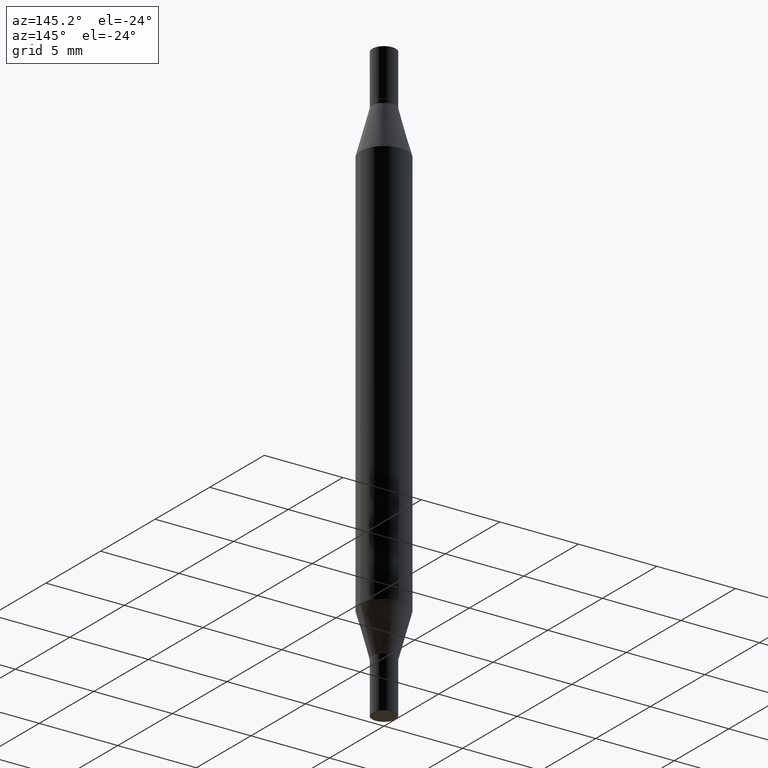
[diagram: clean part render]
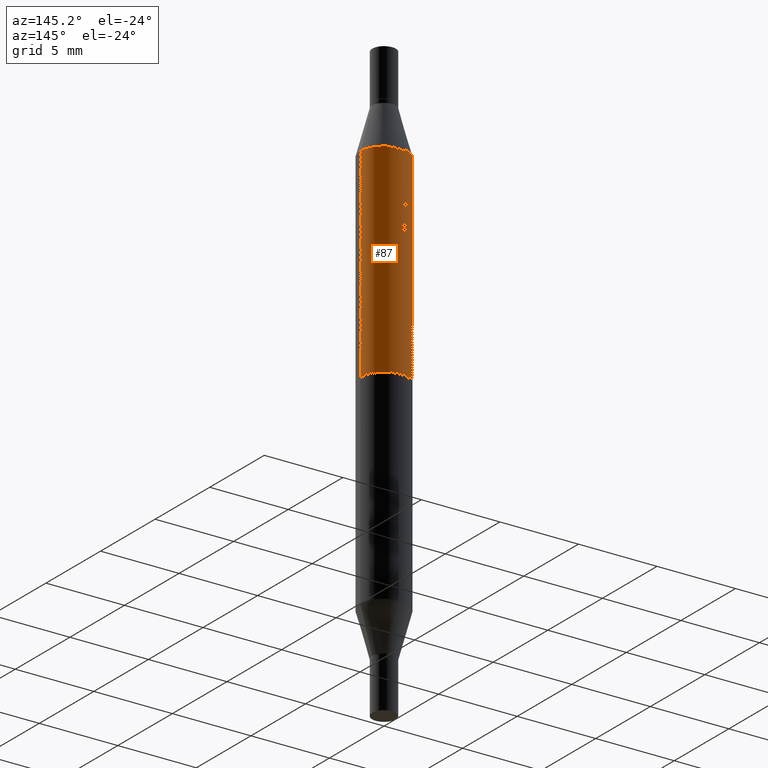
[diagram: same view with one face highlighted and labeled with its STEP entity id]
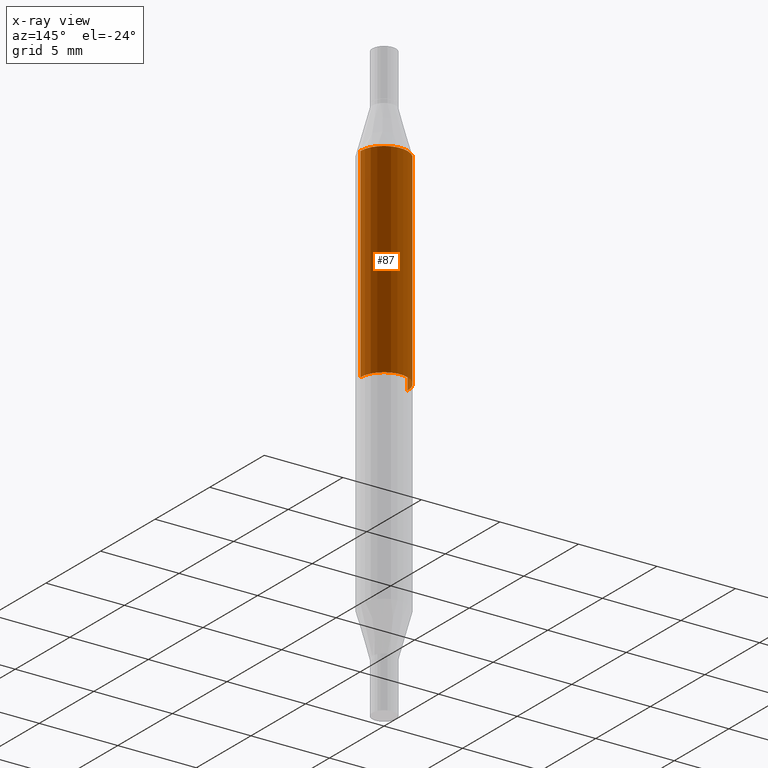
[diagram: x-ray of the same camera — body ghosted, the highlighted face saturated]
A machine part, auxiliary view. The second image highlights one B-rep face of the part: STEP entity #87.
The next image is the same camera in x-ray: the body ghosted, the highlighted face saturated — about 0% of this face is hidden behind the body in this view.
In plain terms, the highlighted cylindrical surface (edge-blend (fillet) strip) has radius 1.4999 mm, axis along (-0, -0, -1).
Its self-contained STEP definition (entity closure, byte-faithful):
#24 = DIRECTION ( 'NONE',  ( 0.000000000000000000, 1.000000000000000000, -4.626330217890369336E-15 ) ) ;
#39 = EDGE_CURVE ( 'NONE', #739, #678, #658, .T. ) ;
#57 = AXIS2_PLACEMENT_3D ( 'NONE', #563, #91, #24 ) ;
#63 = CARTESIAN_POINT ( 'NONE',  ( 0.000000000000000000, -5.223847416807283040E-15, -1.496099999999999985 ) ) ;
#87 = ADVANCED_FACE ( 'NONE', ( #105 ), #710, .T. ) ;
#91 = DIRECTION ( 'NONE',  ( -0.000000000000000000, -3.491643216902134830E-15, -1.000000000000000000 ) ) ;
#105 = FACE_OUTER_BOUND ( 'NONE', #168, .T. ) ;
#144 = CARTESIAN_POINT ( 'NONE',  ( 3.076410765668156654E-29, -8.311408901143919011E-16, -0.2380954988232820146 ) ) ;
#168 = EDGE_LOOP ( 'NONE', ( #801, #499, #612, #465 ) ) ;
#220 = DIRECTION ( 'NONE',  ( 1.000000000000000000, -6.982962677686272233E-15, 0.000000000000000000 ) ) ;
#236 = EDGE_CURVE ( 'NONE', #739, #792, #968, .T. ) ;
#239 = AXIS2_PLACEMENT_3D ( 'NONE', #63, #737, #220 ) ;
#307 = EDGE_CURVE ( 'NONE', #772, #792, #603, .T. ) ;
#379 = CARTESIAN_POINT ( 'NONE',  ( 0.05905000000000000526, -5.636191362924657961E-15, -1.496099999999999985 ) ) ;
#414 = CARTESIAN_POINT ( 'NONE',  ( 0.05904999999999999832, -1.243484836231766624E-15, -0.2380954988232820146 ) ) ;
#454 = CARTESIAN_POINT ( 'NONE',  ( -0.05905000000000000526, -1.316359346049593906E-15, -0.7480499999999999927 ) ) ;
#455 = AXIS2_PLACEMENT_3D ( 'NONE', #144, #956, #630 ) ;
#461 = EDGE_CURVE ( 'NONE', #678, #772, #708, .T. ) ;
#465 = ORIENTED_EDGE ( 'NONE', *, *, #307, .F. ) ;
#482 = VECTOR ( 'NONE', #532, 39.37007874015748143 ) ;
#499 = ORIENTED_EDGE ( 'NONE', *, *, #39, .F. ) ;
#532 = DIRECTION ( 'NONE',  ( -2.445468806185136877E-29, -3.491805094961123683E-15, -1.000000000000000000 ) ) ;
#563 = CARTESIAN_POINT ( 'NONE',  ( 1.829332940466791194E-29, -2.611802615521614830E-15, -0.7480499999999999927 ) ) ;
#565 = VECTOR ( 'NONE', #901, 39.37007874015748143 ) ;
#603 = CIRCLE ( 'NONE', #57, 0.05905000000000000526 ) ;
#612 = ORIENTED_EDGE ( 'NONE', *, *, #236, .T. ) ;
#630 = DIRECTION ( 'NONE',  ( 1.000000000000000000, -6.982962677686265133E-15, 0.000000000000000000 ) ) ;
#658 = CIRCLE ( 'NONE', #455, 0.05904999999999999832 ) ;
#662 = CARTESIAN_POINT ( 'NONE',  ( -0.05904999999999999832, -4.260284833459836245E-16, -0.2380954988232820146 ) ) ;
#678 = VERTEX_POINT ( 'NONE', #662 ) ;
#708 = LINE ( 'NONE', #848, #482 ) ;
#710 = CYLINDRICAL_SURFACE ( 'NONE', #239, 0.05905000000000000526 ) ;
#737 = DIRECTION ( 'NONE',  ( -2.445468806185136597E-29, -3.491805094961124077E-15, -1.000000000000000000 ) ) ;
#739 = VERTEX_POINT ( 'NONE', #414 ) ;
#772 = VERTEX_POINT ( 'NONE', #454 ) ;
#792 = VERTEX_POINT ( 'NONE', #974 ) ;
#801 = ORIENTED_EDGE ( 'NONE', *, *, #461, .F. ) ;
#848 = CARTESIAN_POINT ( 'NONE',  ( -0.05905000000000000526, -4.818735010038875060E-15, -1.496099999999999985 ) ) ;
#901 = DIRECTION ( 'NONE',  ( -2.445468806185136877E-29, -3.491805094961123683E-15, -1.000000000000000000 ) ) ;
#956 = DIRECTION ( 'NONE',  ( 2.445468806185136597E-29, 3.491805094961124077E-15, 1.000000000000000000 ) ) ;
#968 = LINE ( 'NONE', #379, #565 ) ;
#974 = CARTESIAN_POINT ( 'NONE',  ( 0.05905000000000000526, -2.133815698935376609E-15, -0.7480499999999999927 ) ) ;